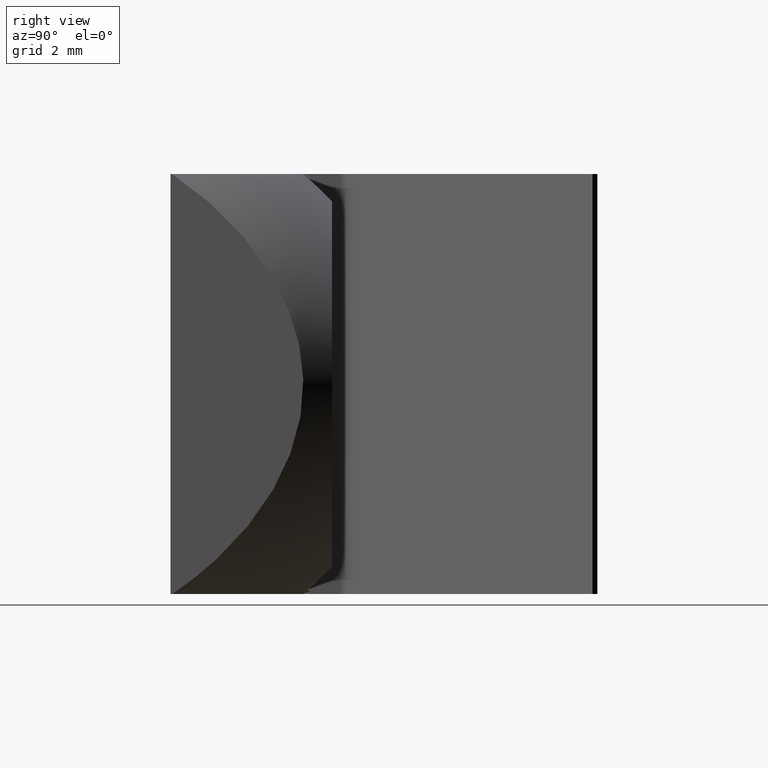
[diagram: clean part render]
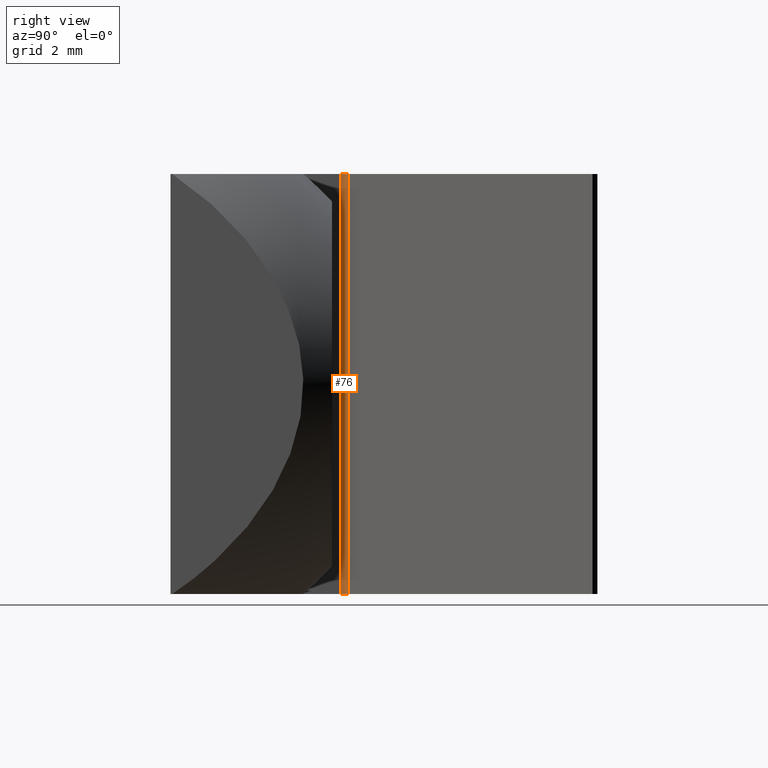
[diagram: same view with one face highlighted and labeled with its STEP entity id]
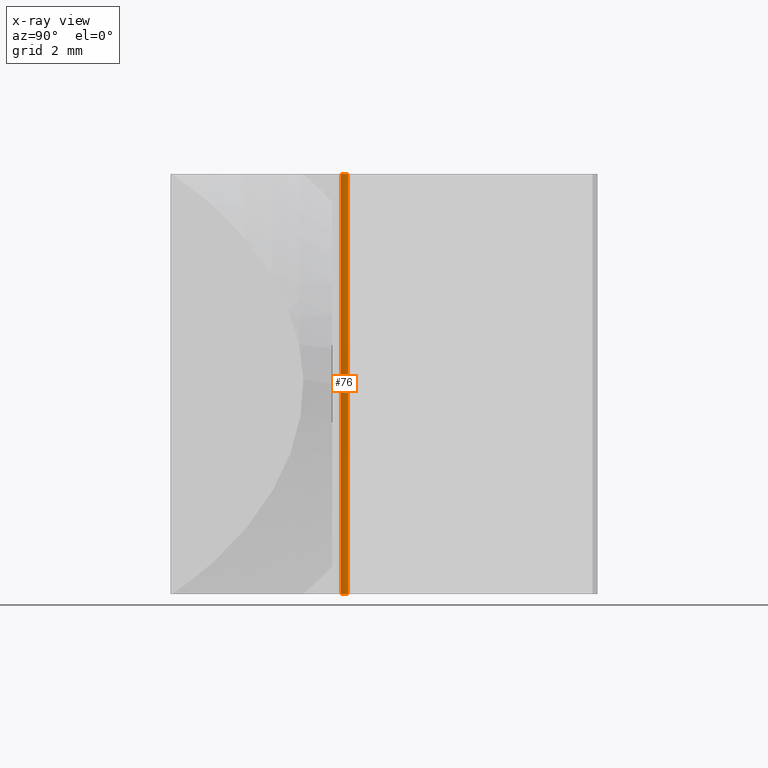
[diagram: x-ray of the same camera — body ghosted, the highlighted face saturated]
A machine part, right view. The second image highlights one B-rep face of the part: STEP entity #76.
The next image is the same camera in x-ray: the body ghosted, the highlighted face saturated — about 0% of this face is hidden behind the body in this view.
In plain terms, the highlighted cylindrical surface (edge-blend (fillet) strip) has radius 0.3 mm, axis along (-0, -0, -1).
Its self-contained STEP definition (entity closure, byte-faithful):
#10 = EDGE_CURVE ( 'NONE', #688, #216, #626, .T. ) ;
#11 = EDGE_CURVE ( 'NONE', #491, #218, #500, .T. ) ;
#19 = EDGE_CURVE ( 'NONE', #688, #491, #192, .T. ) ;
#22 = EDGE_CURVE ( 'NONE', #216, #218, #205, .T. ) ;
#76 = ADVANCED_FACE ( 'NONE', ( #601 ), #377, .F. ) ;
#126 = AXIS2_PLACEMENT_3D ( 'NONE', #542, #578, #591 ) ;
#138 = VECTOR ( 'NONE', #655, 1000.000000000000000 ) ;
#152 = AXIS2_PLACEMENT_3D ( 'NONE', #466, #438, #779 ) ;
#169 = VECTOR ( 'NONE', #689, 1000.000000000000000 ) ;
#182 = AXIS2_PLACEMENT_3D ( 'NONE', #310, #764, #464 ) ;
#192 = CIRCLE ( 'NONE', #152, 0.2999999999999999300 ) ;
#205 = CIRCLE ( 'NONE', #126, 0.2999999999999999300 ) ;
#216 = VERTEX_POINT ( 'NONE', #679 ) ;
#218 = VERTEX_POINT ( 'NONE', #716 ) ;
#262 = CARTESIAN_POINT ( 'NONE',  ( -6.299999999999999800, 5.266846170922499400, 6.500000000000000000 ) ) ;
#284 = CARTESIAN_POINT ( 'NONE',  ( -6.192836282905961600, 5.496659503858192700, 6.500000000000000000 ) ) ;
#310 = CARTESIAN_POINT ( 'NONE',  ( -6.000000000000000000, 5.266846170922499400, 6.500000000000000000 ) ) ;
#377 = CYLINDRICAL_SURFACE ( 'NONE', #182, 0.2999999999999999300 ) ;
#387 = ORIENTED_EDGE ( 'NONE', *, *, #10, .T. ) ;
#388 = ORIENTED_EDGE ( 'NONE', *, *, #19, .F. ) ;
#397 = ORIENTED_EDGE ( 'NONE', *, *, #11, .F. ) ;
#398 = ORIENTED_EDGE ( 'NONE', *, *, #22, .T. ) ;
#438 = DIRECTION ( 'NONE',  ( -0.0000000000000000000, -0.0000000000000000000, -1.000000000000000000 ) ) ;
#452 = EDGE_LOOP ( 'NONE', ( #398, #397, #388, #387 ) ) ;
#464 = DIRECTION ( 'NONE',  ( -1.000000000000000000, 0.0000000000000000000, 0.0000000000000000000 ) ) ;
#466 = CARTESIAN_POINT ( 'NONE',  ( -6.000000000000000000, 5.266846170922499400, 6.500000000000000000 ) ) ;
#491 = VERTEX_POINT ( 'NONE', #284 ) ;
#500 = LINE ( 'NONE', #790, #138 ) ;
#542 = CARTESIAN_POINT ( 'NONE',  ( -6.000000000000000000, 5.266846170922499400, -6.500000000000000000 ) ) ;
#544 = CARTESIAN_POINT ( 'NONE',  ( -6.299999999999999800, 5.266846170922499400, 6.500000000000000000 ) ) ;
#578 = DIRECTION ( 'NONE',  ( -0.0000000000000000000, -0.0000000000000000000, -1.000000000000000000 ) ) ;
#591 = DIRECTION ( 'NONE',  ( 1.000000000000000000, -2.891205793294679000E-015, 0.0000000000000000000 ) ) ;
#601 = FACE_OUTER_BOUND ( 'NONE', #452, .T. ) ;
#626 = LINE ( 'NONE', #262, #169 ) ;
#655 = DIRECTION ( 'NONE',  ( -0.0000000000000000000, -0.0000000000000000000, -1.000000000000000000 ) ) ;
#679 = CARTESIAN_POINT ( 'NONE',  ( -6.299999999999999800, 5.266846170922499400, -6.500000000000000000 ) ) ;
#688 = VERTEX_POINT ( 'NONE', #544 ) ;
#689 = DIRECTION ( 'NONE',  ( -0.0000000000000000000, -0.0000000000000000000, -1.000000000000000000 ) ) ;
#716 = CARTESIAN_POINT ( 'NONE',  ( -6.192836282905961600, 5.496659503858192700, -6.500000000000000000 ) ) ;
#764 = DIRECTION ( 'NONE',  ( -0.0000000000000000000, -0.0000000000000000000, -1.000000000000000000 ) ) ;
#779 = DIRECTION ( 'NONE',  ( 1.000000000000000000, -2.891205793294679000E-015, 0.0000000000000000000 ) ) ;
#790 = CARTESIAN_POINT ( 'NONE',  ( -6.192836282905961600, 5.496659503858192700, 6.500000000000000000 ) ) ;